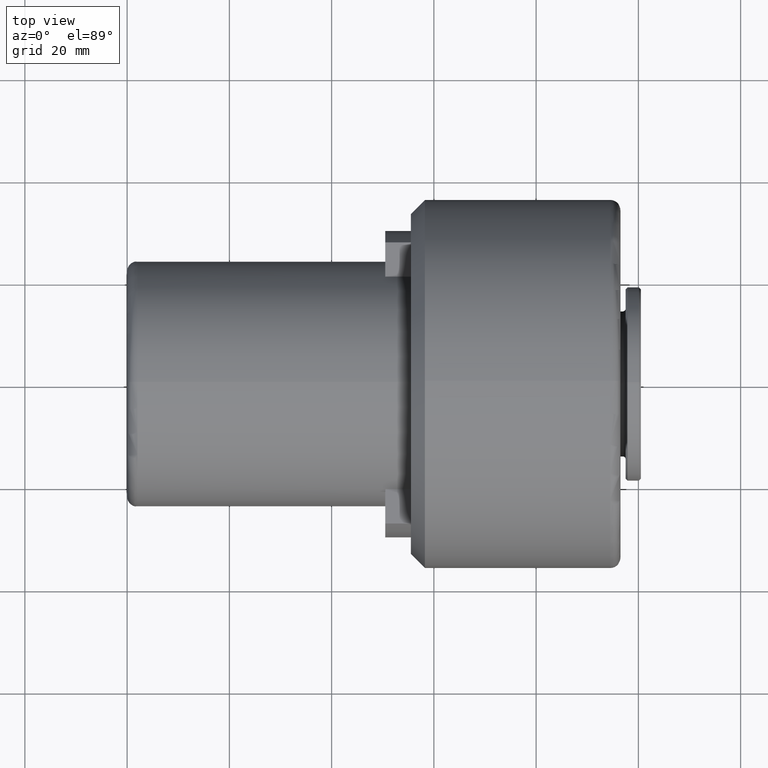
[diagram: clean part render]
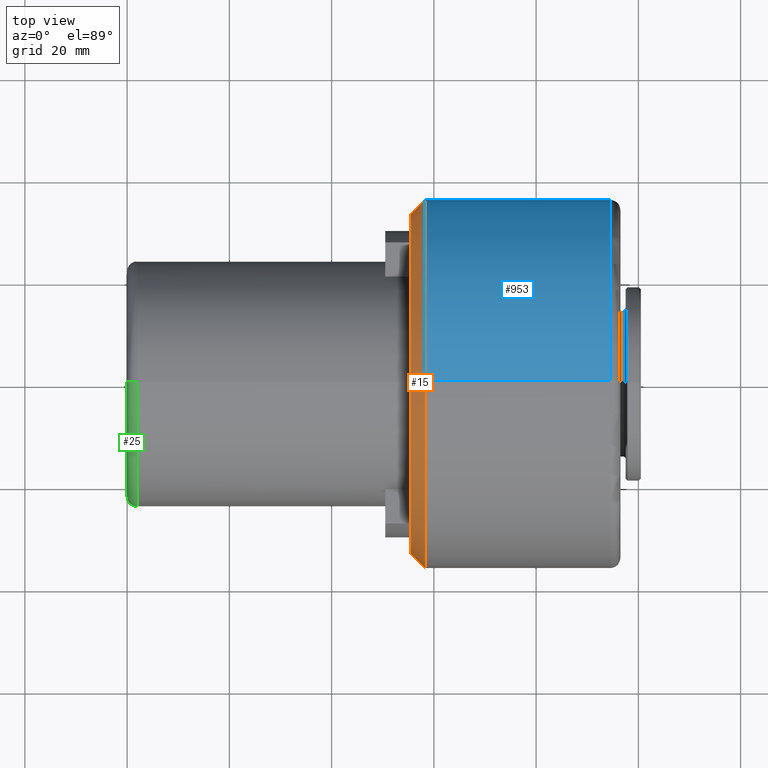
[diagram: same view with three faces highlighted in distinct colors, each labeled with its STEP entity id]
A machine part, top view with three faces highlighted in distinct colors.
Their STEP definitions:

[orange] entity #15 — the highlighted conical surface has half-angle 45 deg.
#15 = ADVANCED_FACE ( 'NONE', ( #626 ), #264, .T. ) ;
#47 = VECTOR ( 'NONE', #498, 1000.000000000000000 ) ;
#54 = VERTEX_POINT ( 'NONE', #717 ) ;
#116 = LINE ( 'NONE', #174, #1184 ) ;
#174 = CARTESIAN_POINT ( 'NONE',  ( 58.25000000000002100, 36.00000000000002100, 0.0000000000000000000 ) ) ;
#180 = DIRECTION ( 'NONE',  ( -1.000000000000000000, -0.0000000000000000000, -1.043442692316876300E-016 ) ) ;
#194 = VERTEX_POINT ( 'NONE', #308 ) ;
#198 = AXIS2_PLACEMENT_3D ( 'NONE', #824, #180, #930 ) ;
#235 = CARTESIAN_POINT ( 'NONE',  ( 58.25000000000002100, 0.0000000000000000000, 0.0000000000000000000 ) ) ;
#263 = CIRCLE ( 'NONE', #317, 33.24999999999999300 ) ;
#264 = CONICAL_SURFACE ( 'NONE', #362, 36.00000000000002100, 0.7853981633974470600 ) ;
#279 = DIRECTION ( 'NONE',  ( 0.7071067811865483500, 0.7071067811865468000, 0.0000000000000000000 ) ) ;
#308 = CARTESIAN_POINT ( 'NONE',  ( 55.49999999999999300, -33.24999999999999300, 4.240339542047711600E-015 ) ) ;
#317 = AXIS2_PLACEMENT_3D ( 'NONE', #1098, #464, #1211 ) ;
#362 = AXIS2_PLACEMENT_3D ( 'NONE', #235, #566, #1094 ) ;
#396 = DIRECTION ( 'NONE',  ( -1.000000000000000000, -0.0000000000000000000, -1.043442692316876300E-016 ) ) ;
#464 = DIRECTION ( 'NONE',  ( 1.000000000000000000, 9.637352644315590300E-017, -0.0000000000000000000 ) ) ;
#498 = DIRECTION ( 'NONE',  ( 0.7071067811865485700, -0.7071067811865465700, 8.659560562354924200E-017 ) ) ;
#510 = ORIENTED_EDGE ( 'NONE', *, *, #874, .T. ) ;
#542 = ORIENTED_EDGE ( 'NONE', *, *, #1275, .T. ) ;
#557 = CARTESIAN_POINT ( 'NONE',  ( 58.25000000000001400, 36.00000000000001400, 0.0000000000000000000 ) ) ;
#566 = DIRECTION ( 'NONE',  ( 1.000000000000000000, 9.637352644315590300E-017, -0.0000000000000000000 ) ) ;
#624 = ORIENTED_EDGE ( 'NONE', *, *, #1121, .T. ) ;
#626 = FACE_OUTER_BOUND ( 'NONE', #1241, .T. ) ;
#717 = CARTESIAN_POINT ( 'NONE',  ( 58.25000000000000700, 0.0000000000000000000, 36.00000000000002800 ) ) ;
#724 = VERTEX_POINT ( 'NONE', #557 ) ;
#824 = CARTESIAN_POINT ( 'NONE',  ( 58.25000000000001400, 0.0000000000000000000, 2.869467403871423700E-016 ) ) ;
#859 = VERTEX_POINT ( 'NONE', #1397 ) ;
#874 = EDGE_CURVE ( 'NONE', #1291, #54, #1053, .T. ) ;
#930 = DIRECTION ( 'NONE',  ( 1.927470528863117600E-016, 0.0000000000000000000, -1.000000000000000000 ) ) ;
#942 = ORIENTED_EDGE ( 'NONE', *, *, #1350, .T. ) ;
#977 = AXIS2_PLACEMENT_3D ( 'NONE', #1024, #396, #1134 ) ;
#1012 = ORIENTED_EDGE ( 'NONE', *, *, #1265, .F. ) ;
#1017 = CARTESIAN_POINT ( 'NONE',  ( 58.25000000000002100, -36.00000000000002100, 4.408728476930474000E-015 ) ) ;
#1024 = CARTESIAN_POINT ( 'NONE',  ( 58.25000000000001400, 0.0000000000000000000, 2.869467403871423700E-016 ) ) ;
#1029 = CARTESIAN_POINT ( 'NONE',  ( 58.25000000000001400, -36.00000000000001400, 4.408728476930473200E-015 ) ) ;
#1053 = CIRCLE ( 'NONE', #977, 36.00000000000002800 ) ;
#1094 = DIRECTION ( 'NONE',  ( 0.0000000000000000000, 1.000000000000000000, 0.0000000000000000000 ) ) ;
#1098 = CARTESIAN_POINT ( 'NONE',  ( 55.49999999999999300, -2.650271977186816100E-016, 0.0000000000000000000 ) ) ;
#1121 = EDGE_CURVE ( 'NONE', #54, #724, #1174, .T. ) ;
#1134 = DIRECTION ( 'NONE',  ( 1.927470528863117600E-016, 0.0000000000000000000, -1.000000000000000000 ) ) ;
#1174 = CIRCLE ( 'NONE', #198, 36.00000000000002800 ) ;
#1184 = VECTOR ( 'NONE', #279, 1000.000000000000000 ) ;
#1211 = DIRECTION ( 'NONE',  ( 0.0000000000000000000, 1.000000000000000000, 0.0000000000000000000 ) ) ;
#1241 = EDGE_LOOP ( 'NONE', ( #942, #542, #510, #624, #1012 ) ) ;
#1255 = LINE ( 'NONE', #1017, #47 ) ;
#1265 = EDGE_CURVE ( 'NONE', #859, #724, #116, .T. ) ;
#1275 = EDGE_CURVE ( 'NONE', #194, #1291, #1255, .T. ) ;
#1291 = VERTEX_POINT ( 'NONE', #1029 ) ;
#1350 = EDGE_CURVE ( 'NONE', #859, #194, #263, .T. ) ;
#1397 = CARTESIAN_POINT ( 'NONE',  ( 55.49999999999999300, 33.24999999999999300, 0.0000000000000000000 ) ) ;

[blue] entity #953 — the highlighted cylindrical surface (partial cylindrical patch) has radius 36 mm, axis along (-1, 0, 0).
#26 = LINE ( 'NONE', #1318, #913 ) ;
#34 = AXIS2_PLACEMENT_3D ( 'NONE', #392, #1128, #491 ) ;
#54 = VERTEX_POINT ( 'NONE', #717 ) ;
#95 = CARTESIAN_POINT ( 'NONE',  ( 94.50000000000000000, 4.408728476930472400E-015, -36.00000000000001400 ) ) ;
#103 = EDGE_CURVE ( 'NONE', #724, #797, #950, .T. ) ;
#180 = DIRECTION ( 'NONE',  ( -1.000000000000000000, -0.0000000000000000000, -1.043442692316876300E-016 ) ) ;
#198 = AXIS2_PLACEMENT_3D ( 'NONE', #824, #180, #930 ) ;
#288 = VERTEX_POINT ( 'NONE', #95 ) ;
#354 = DIRECTION ( 'NONE',  ( -1.000000000000000000, 0.0000000000000000000, 0.0000000000000000000 ) ) ;
#392 = CARTESIAN_POINT ( 'NONE',  ( 94.50000000000000000, 0.0000000000000000000, 0.0000000000000000000 ) ) ;
#401 = AXIS2_PLACEMENT_3D ( 'NONE', #726, #402, #720 ) ;
#402 = DIRECTION ( 'NONE',  ( -1.000000000000000000, 0.0000000000000000000, 0.0000000000000000000 ) ) ;
#423 = CYLINDRICAL_SURFACE ( 'NONE', #401, 36.00000000000001400 ) ;
#467 = CARTESIAN_POINT ( 'NONE',  ( 58.25000000000002100, 4.408728476930474800E-015, -36.00000000000002800 ) ) ;
#491 = DIRECTION ( 'NONE',  ( 0.0000000000000000000, 0.0000000000000000000, 1.000000000000000000 ) ) ;
#494 = FACE_OUTER_BOUND ( 'NONE', #999, .T. ) ;
#500 = AXIS2_PLACEMENT_3D ( 'NONE', #523, #840, #739 ) ;
#523 = CARTESIAN_POINT ( 'NONE',  ( 58.25000000000001400, 0.0000000000000000000, 2.869467403871423700E-016 ) ) ;
#557 = CARTESIAN_POINT ( 'NONE',  ( 58.25000000000001400, 36.00000000000001400, 0.0000000000000000000 ) ) ;
#648 = VECTOR ( 'NONE', #698, 1000.000000000000000 ) ;
#692 = ORIENTED_EDGE ( 'NONE', *, *, #1234, .T. ) ;
#698 = DIRECTION ( 'NONE',  ( -1.000000000000000000, 0.0000000000000000000, 0.0000000000000000000 ) ) ;
#717 = CARTESIAN_POINT ( 'NONE',  ( 58.25000000000000700, 0.0000000000000000000, 36.00000000000002800 ) ) ;
#720 = DIRECTION ( 'NONE',  ( 0.0000000000000000000, 0.0000000000000000000, 1.000000000000000000 ) ) ;
#724 = VERTEX_POINT ( 'NONE', #557 ) ;
#726 = CARTESIAN_POINT ( 'NONE',  ( 73.59999999999999400, 0.0000000000000000000, 0.0000000000000000000 ) ) ;
#739 = DIRECTION ( 'NONE',  ( 1.927470528863117600E-016, -8.881784197001252300E-016, -1.000000000000000000 ) ) ;
#755 = CARTESIAN_POINT ( 'NONE',  ( 94.50000000000000000, 0.0000000000000000000, 36.00000000000001400 ) ) ;
#759 = EDGE_CURVE ( 'NONE', #850, #54, #26, .T. ) ;
#797 = VERTEX_POINT ( 'NONE', #467 ) ;
#824 = CARTESIAN_POINT ( 'NONE',  ( 58.25000000000001400, 0.0000000000000000000, 2.869467403871423700E-016 ) ) ;
#840 = DIRECTION ( 'NONE',  ( -1.000000000000000000, -0.0000000000000000000, -1.043442692316876300E-016 ) ) ;
#850 = VERTEX_POINT ( 'NONE', #755 ) ;
#913 = VECTOR ( 'NONE', #354, 1000.000000000000000 ) ;
#923 = ORIENTED_EDGE ( 'NONE', *, *, #103, .F. ) ;
#930 = DIRECTION ( 'NONE',  ( 1.927470528863117600E-016, 0.0000000000000000000, -1.000000000000000000 ) ) ;
#938 = ORIENTED_EDGE ( 'NONE', *, *, #759, .F. ) ;
#950 = CIRCLE ( 'NONE', #500, 36.00000000000002800 ) ;
#953 = ADVANCED_FACE ( 'NONE', ( #494 ), #423, .T. ) ;
#958 = CIRCLE ( 'NONE', #34, 36.00000000000001400 ) ;
#999 = EDGE_LOOP ( 'NONE', ( #692, #1348, #923, #1112, #938 ) ) ;
#1071 = LINE ( 'NONE', #1113, #648 ) ;
#1112 = ORIENTED_EDGE ( 'NONE', *, *, #1121, .F. ) ;
#1113 = CARTESIAN_POINT ( 'NONE',  ( 73.59999999999999400, 4.408728476930472400E-015, -36.00000000000001400 ) ) ;
#1121 = EDGE_CURVE ( 'NONE', #54, #724, #1174, .T. ) ;
#1128 = DIRECTION ( 'NONE',  ( -1.000000000000000000, 0.0000000000000000000, 0.0000000000000000000 ) ) ;
#1173 = EDGE_CURVE ( 'NONE', #288, #797, #1071, .T. ) ;
#1174 = CIRCLE ( 'NONE', #198, 36.00000000000002800 ) ;
#1234 = EDGE_CURVE ( 'NONE', #850, #288, #958, .T. ) ;
#1318 = CARTESIAN_POINT ( 'NONE',  ( 73.59999999999999400, 0.0000000000000000000, 36.00000000000001400 ) ) ;
#1348 = ORIENTED_EDGE ( 'NONE', *, *, #1173, .T. ) ;

[green] entity #25 — the highlighted toroidal blend (fillet) surface has major radius 22 mm and minor (blend) radius 2 mm.
#25 = ADVANCED_FACE ( 'NONE', ( #586 ), #545, .T. ) ;
#59 = DIRECTION ( 'NONE',  ( 0.0000000000000000000, 0.0000000000000000000, 1.000000000000000000 ) ) ;
#70 = DIRECTION ( 'NONE',  ( 0.0000000000000000000, 0.0000000000000000000, 1.000000000000000000 ) ) ;
#121 = VERTEX_POINT ( 'NONE', #306 ) ;
#150 = VERTEX_POINT ( 'NONE', #258 ) ;
#185 = ORIENTED_EDGE ( 'NONE', *, *, #1190, .F. ) ;
#258 = CARTESIAN_POINT ( 'NONE',  ( 2.000000000000001800, 2.939152317953648700E-015, -24.00000000000001100 ) ) ;
#306 = CARTESIAN_POINT ( 'NONE',  ( 0.0000000000000000000, 0.0000000000000000000, 21.99999999999999300 ) ) ;
#388 = CARTESIAN_POINT ( 'NONE',  ( 2.000000000000001800, 0.0000000000000000000, 23.99999999999999300 ) ) ;
#429 = CIRCLE ( 'NONE', #1246, 24.00000000000000000 ) ;
#458 = CARTESIAN_POINT ( 'NONE',  ( 2.000000000000001800, 0.0000000000000000000, -7.733975497063264400E-015 ) ) ;
#459 = DIRECTION ( 'NONE',  ( 0.0000000000000000000, 1.000000000000000000, 1.224646799147353200E-016 ) ) ;
#482 = CARTESIAN_POINT ( 'NONE',  ( 2.000000000000001800, 0.0000000000000000000, 21.99999999999999300 ) ) ;
#484 = VERTEX_POINT ( 'NONE', #388 ) ;
#545 = TOROIDAL_SURFACE ( 'NONE', #643, 22.00000000000000000, 2.000000000000000000 ) ;
#551 = AXIS2_PLACEMENT_3D ( 'NONE', #1093, #459, #1207 ) ;
#585 = ORIENTED_EDGE ( 'NONE', *, *, #745, .F. ) ;
#586 = FACE_OUTER_BOUND ( 'NONE', #1223, .T. ) ;
#588 = DIRECTION ( 'NONE',  ( 0.0000000000000000000, 0.0000000000000000000, -1.000000000000000000 ) ) ;
#632 = CIRCLE ( 'NONE', #551, 2.000000000000001800 ) ;
#643 = AXIS2_PLACEMENT_3D ( 'NONE', #458, #1199, #1136 ) ;
#686 = CIRCLE ( 'NONE', #1252, 22.00000000000000000 ) ;
#689 = ORIENTED_EDGE ( 'NONE', *, *, #1170, .T. ) ;
#703 = DIRECTION ( 'NONE',  ( 1.000000000000000000, -0.0000000000000000000, -0.0000000000000000000 ) ) ;
#712 = DIRECTION ( 'NONE',  ( -1.000000000000000000, 0.0000000000000000000, 0.0000000000000000000 ) ) ;
#745 = EDGE_CURVE ( 'NONE', #150, #1127, #632, .T. ) ;
#943 = AXIS2_PLACEMENT_3D ( 'NONE', #482, #1226, #588 ) ;
#1093 = CARTESIAN_POINT ( 'NONE',  ( 2.000000000000001800, 2.694222958124176800E-015, -22.00000000000000700 ) ) ;
#1127 = VERTEX_POINT ( 'NONE', #1137 ) ;
#1136 = DIRECTION ( 'NONE',  ( 0.0000000000000000000, 0.0000000000000000000, 1.000000000000000000 ) ) ;
#1137 = CARTESIAN_POINT ( 'NONE',  ( 0.0000000000000000000, 2.816687638038912400E-015, -22.00000000000000700 ) ) ;
#1170 = EDGE_CURVE ( 'NONE', #484, #121, #1375, .T. ) ;
#1190 = EDGE_CURVE ( 'NONE', #484, #150, #429, .T. ) ;
#1199 = DIRECTION ( 'NONE',  ( -1.000000000000000000, 0.0000000000000000000, 0.0000000000000000000 ) ) ;
#1207 = DIRECTION ( 'NONE',  ( 0.0000000000000000000, -1.224646799147351500E-016, 1.000000000000000000 ) ) ;
#1223 = EDGE_LOOP ( 'NONE', ( #585, #185, #689, #1257 ) ) ;
#1226 = DIRECTION ( 'NONE',  ( 0.0000000000000000000, -1.000000000000000000, 0.0000000000000000000 ) ) ;
#1243 = EDGE_CURVE ( 'NONE', #1127, #121, #686, .T. ) ;
#1246 = AXIS2_PLACEMENT_3D ( 'NONE', #1347, #703, #59 ) ;
#1252 = AXIS2_PLACEMENT_3D ( 'NONE', #1358, #712, #70 ) ;
#1257 = ORIENTED_EDGE ( 'NONE', *, *, #1243, .F. ) ;
#1347 = CARTESIAN_POINT ( 'NONE',  ( 2.000000000000001800, 0.0000000000000000000, -7.733975497063264400E-015 ) ) ;
#1358 = CARTESIAN_POINT ( 'NONE',  ( 0.0000000000000000000, 0.0000000000000000000, -7.733975497063264400E-015 ) ) ;
#1375 = CIRCLE ( 'NONE', #943, 2.000000000000001800 ) ;